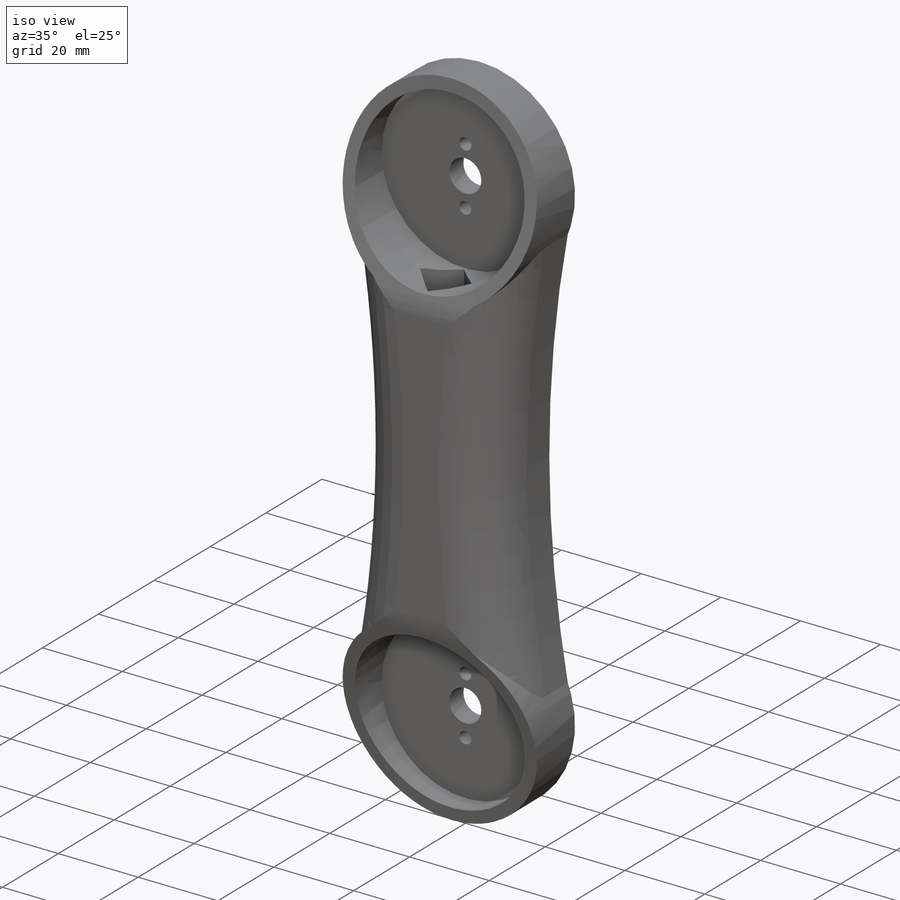
[diagram: iso view]
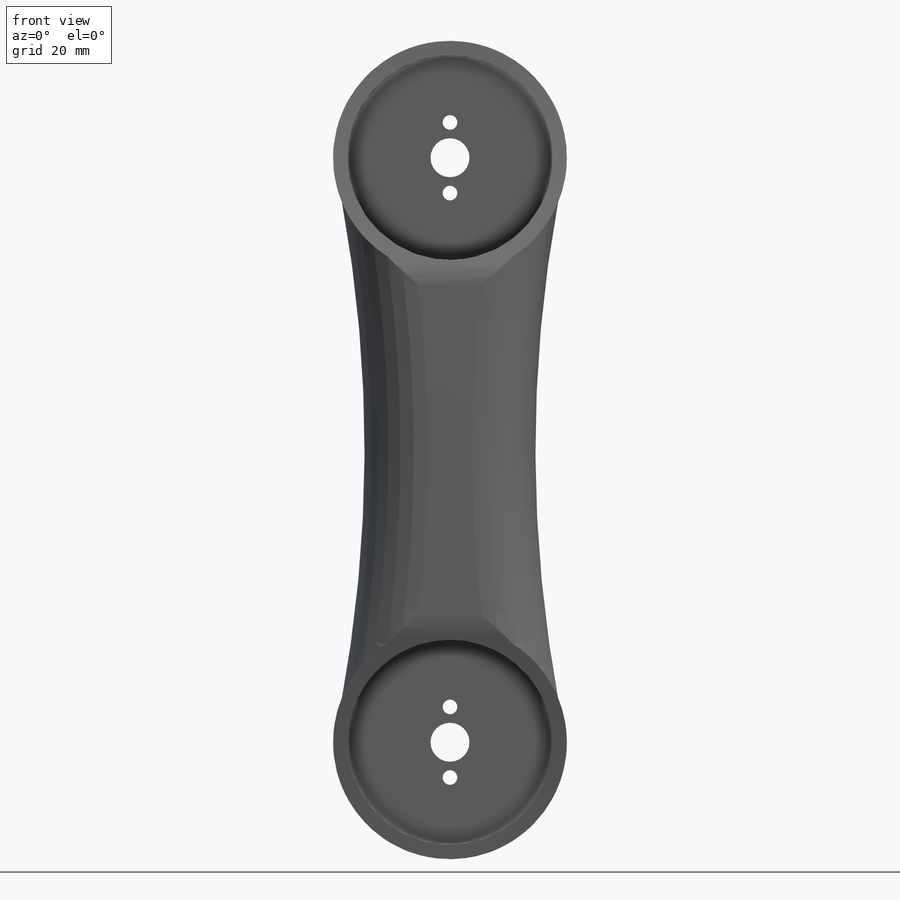
[diagram: front view]
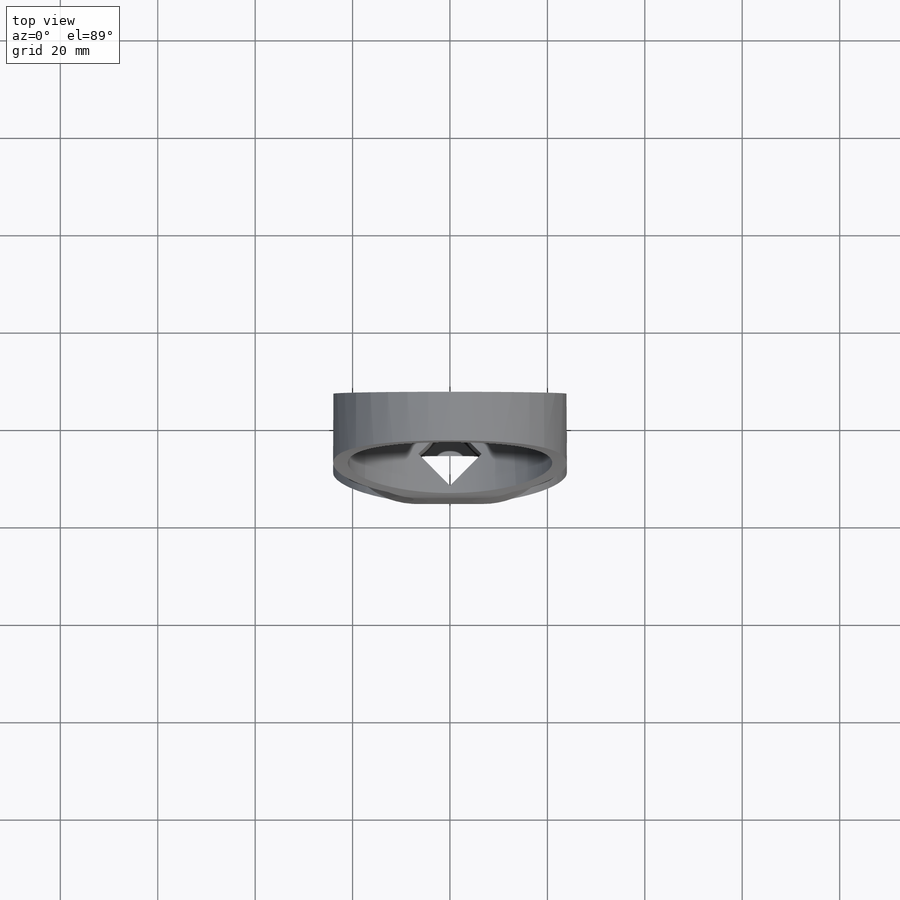
[diagram: top view]
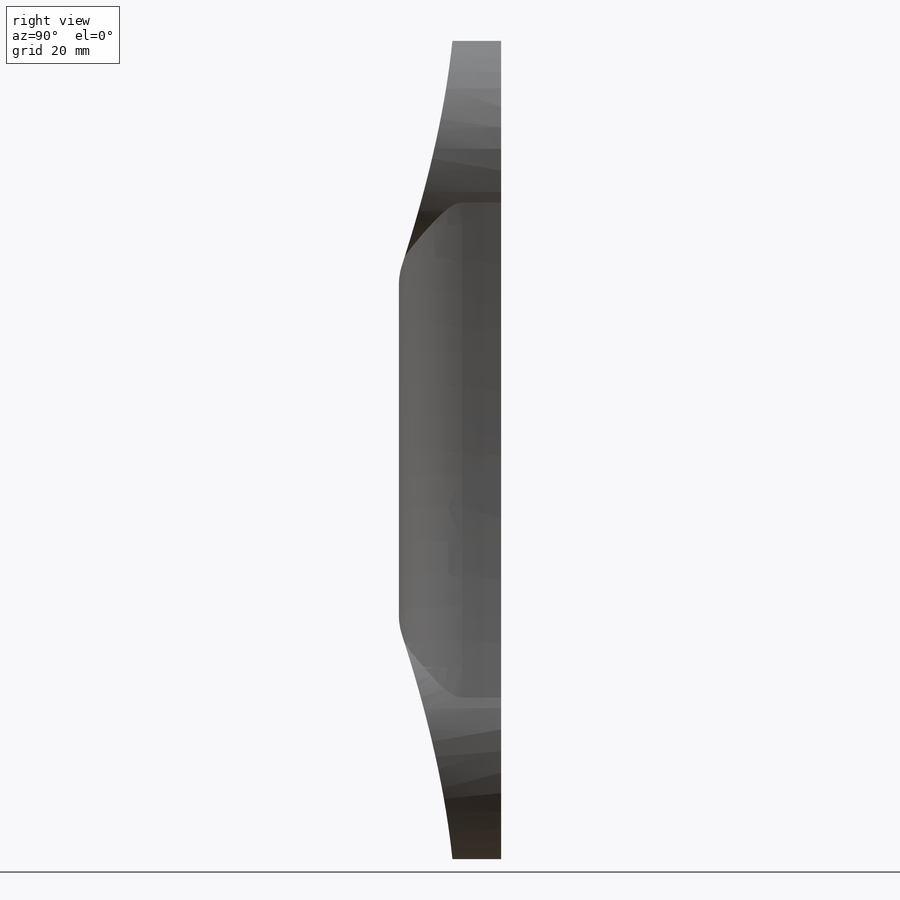
[diagram: right view]
SOLIDWORKS PART (.sldprt)
format: sldprt  version: not decoded by parser v0  size: 386,048 bytes
history: native  units: mm
features: sketch x7, plane x4, cut_extrude x4, extrude x3, material x1, fillet x1 (+10 scaffold rows collapsed)
feature tree (30):
  scaffold x10  (default folders/planes/origin — collapsed)
  material  "Malzeme <belirli değil>"
  plane  "Ön Düzlem"
  plane  "Üst Düzlem"
  plane  "Sağ Düzlem"
  sketch  "Çizim2"  dims[c1.D1=8.0mm c1.D2=3.0mm c1.D3=3.0mm c1.D7=42.0mm c1.D8=42.0mm c1.D9=48.0mm c1.D10=48.0mm c1.D4=7.25mm c1.D5=14.5mm c1.D6=120.0mm c2.D7=~40.23102mm]
  extrude  "Yükseklik-Ekstrüzyon1"  Depth=5mm
  sketch  "Çizim3"  dims[D1=42.0mm D2=42.0mm]
  extrude  "Yükseklik-Ekstrüzyon3"  Depth=16mm
  sketch  "Çizim5"  dims[c1.D1=10.5mm c1.D2=10.5mm c2.D1=11.0mm c2.D2=48.0mm]
  cut_extrude  "Kes-Ekstrüzyon3"  Depth=24mm
  fillet  "Radyus22"  Radius=13mm
  sketch  "Çizim6"  dims[c1.D1=~11.110888mm c2.D1=13.0mm c2.D2=7.0mm]
  cut_extrude  "Kes-Ekstrüzyon4"  Depth=41mm
  sketch  "Çizim7"
  extrude  "Yükseklik-Ekstrüzyon6"  Depth=41mm
  plane  "Düzlem2"
  sketch  "Çizim10"
  cut_extrude  "Kes-Ekstrüzyon7"  Depth=41mm
  sketch  "Çizim11"
  cut_extrude  "Kes-Ekstrüzyon8"  Depth=41mm
decode coverage: 12 of 15 modeling features carry decoded parameters
note: ~ marks probable driven/reference dimensions
note: suppression state not decoded; provenance and decode notes live in map.json
